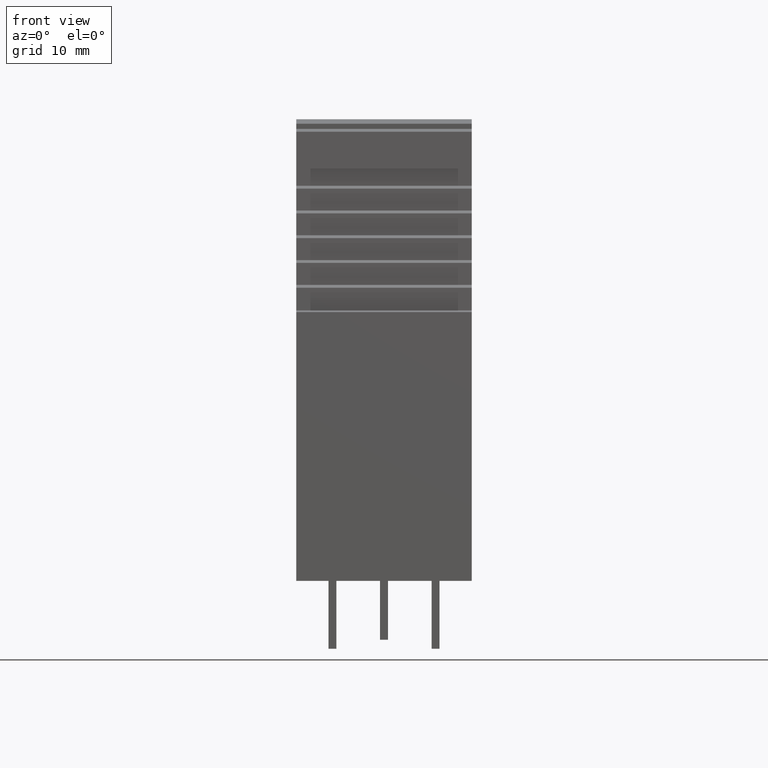
[diagram: clean part render]
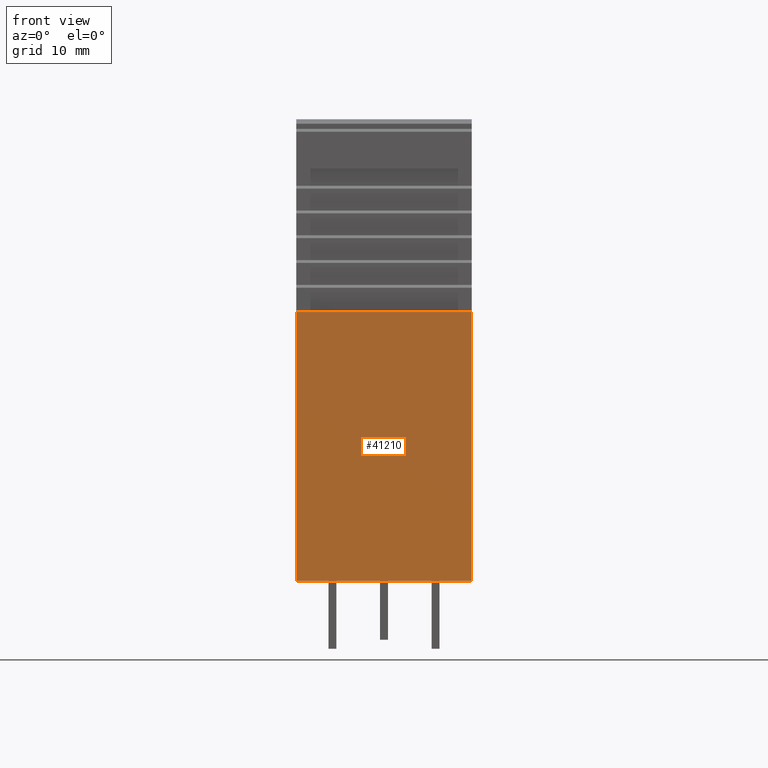
[diagram: same view with one face highlighted and labeled with its STEP entity id]
A machine part, front view. The second image highlights one B-rep face of the part: STEP entity #41210.
In plain terms, the highlighted planar face has unit normal (0, -1, 0).
Its self-contained STEP definition (entity closure, byte-faithful):
#6450=CARTESIAN_POINT('',(166.67605484043,82.472699115134,
-2.14452701739759));
#6460=VERTEX_POINT('',#6450);
#6490=CARTESIAN_POINT('',(166.67605484043,36.9601229990142,
-2.14452702139915));
#6500=DIRECTION('',(3.82813285765736E-21,1.,8.79221417989464E-11));
#6510=VECTOR('',#6500,1.);
#6520=LINE('',#6490,#6510);
#6530=CARTESIAN_POINT('',(166.67605484043,55.3590821823537,
-2.14452701978148));
#6540=VERTEX_POINT('',#6530);
#6550=EDGE_CURVE('',#6540,#6460,#6520,.T.);
#8130=CARTESIAN_POINT('',(166.676054839652,82.4726991168399,
-19.8445270177479));
#8140=VERTEX_POINT('',#8130);
#8170=CARTESIAN_POINT('',(166.676055106525,82.4726990648771,
-12.9945270167077));
#8180=DIRECTION('',(-4.39608349722675E-11,9.63825513185603E-11,-1.));
#8190=VECTOR('',#8180,1.);
#8200=LINE('',#8170,#8190);
#8210=EDGE_CURVE('',#6460,#8140,#8200,.T.);
#14120=CARTESIAN_POINT('',(166.676054839652,55.3590821839099,
-19.8445270201318));
#14130=VERTEX_POINT('',#14120);
#14160=CARTESIAN_POINT('',(166.676054839652,36.9601230005704,
-19.8445270217494));
#14170=DIRECTION('',(3.82813285765736E-21,1.,8.79221417989464E-11));
#14180=VECTOR('',#14170,1.);
#14190=LINE('',#14160,#14180);
#14200=EDGE_CURVE('',#14130,#8140,#14190,.T.);
#19660=CARTESIAN_POINT('',(166.676054839953,55.3590821833076,
-12.9945270190916));
#19670=DIRECTION('',(4.39608349722675E-11,-8.79221417989464E-11,1.));
#19680=VECTOR('',#19670,1.);
#19690=LINE('',#19660,#19680);
#19700=EDGE_CURVE('',#14130,#6540,#19690,.T.);
#41100=CARTESIAN_POINT('',(166.676054840041,60.8840823489503,
-10.994281611194));
#41110=DIRECTION('',(1.,3.69979083744326E-23,-4.39608349722675E-11));
#41120=DIRECTION('',(-4.39608349722675E-11,8.79221417989464E-11,-1.));
#41130=AXIS2_PLACEMENT_3D('',#41100,#41110,#41120);
#41140=PLANE('',#41130);
#41150=ORIENTED_EDGE('',*,*,#6550,.F.);
#41160=ORIENTED_EDGE('',*,*,#8210,.F.);
#41170=ORIENTED_EDGE('',*,*,#14200,.T.);
#41180=ORIENTED_EDGE('',*,*,#19700,.F.);
#41190=EDGE_LOOP('',(#41180,#41170,#41160,#41150));
#41200=FACE_OUTER_BOUND('',#41190,.T.);
#41210=ADVANCED_FACE('',(#41200),#41140,.T.);